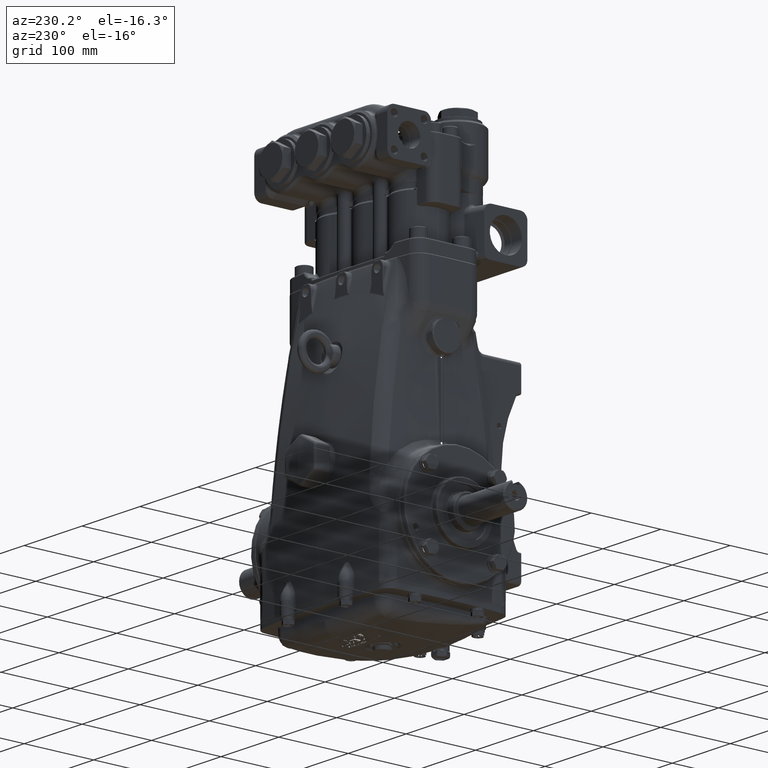
[diagram: clean part render]
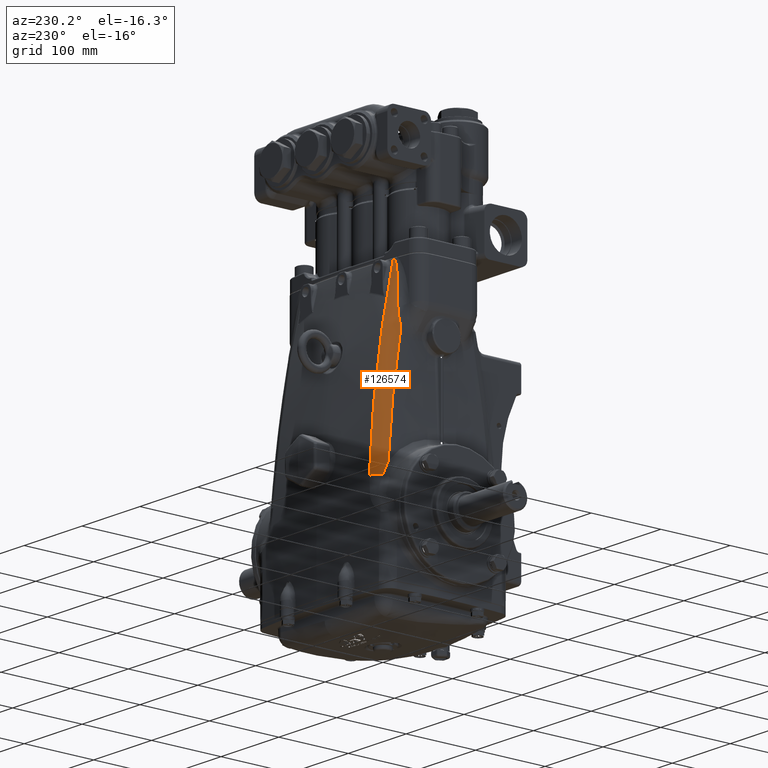
[diagram: same view with one face highlighted and labeled with its STEP entity id]
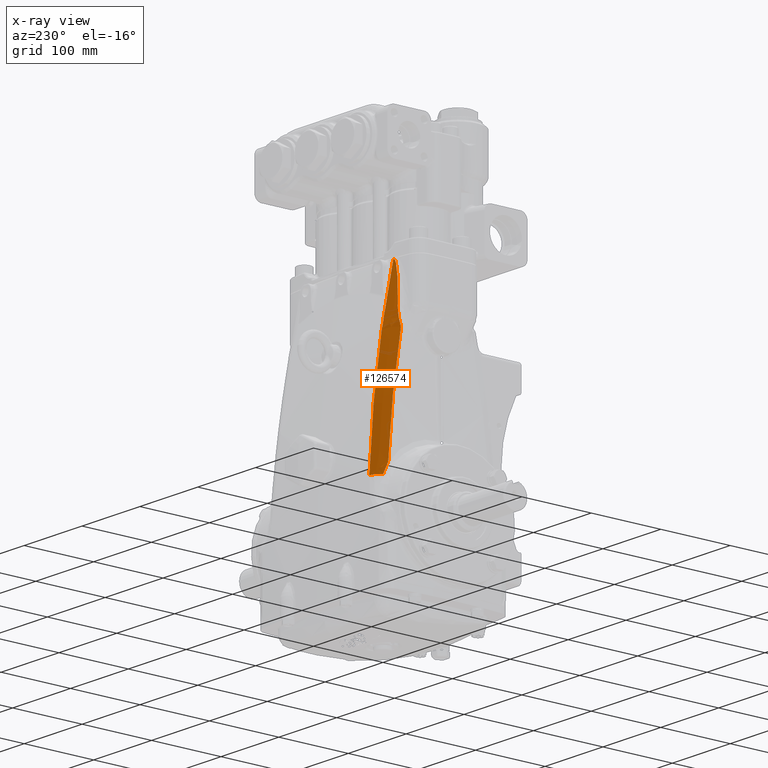
[diagram: x-ray of the same camera — body ghosted, the highlighted face saturated]
A machine part, auxiliary view. The second image highlights one B-rep face of the part: STEP entity #126574.
The next image is the same camera in x-ray: the body ghosted, the highlighted face saturated — about 0% of this face is hidden behind the body in this view.
In plain terms, the highlighted face is a freeform B-spline surface patch.
Its self-contained STEP definition (entity closure, byte-faithful):
#319 = CARTESIAN_POINT ( 'NONE',  ( -3.187411999549493391, 3.180972947435750431, 4.960797234820099710 ) ) ;
#737 = CARTESIAN_POINT ( 'NONE',  ( -3.269204732900450772, 3.494166244084205619, 1.549803905489431921 ) ) ;
#760 = B_SPLINE_CURVE_WITH_KNOTS ( 'NONE', 3,
 ( #83878, #124570, #33152, #73860, #114557, #23134, #63852, #104568, #13148, #53831, #94559, #3146, #43819, #84525, #125215, #33813, #74526, #115220, #23798, #64517, #105222, #13803, #54495, #95216, #3794, #44482, #85194, #125879 ),
 .UNSPECIFIED., .F., .F.,
 ( 4, 2, 2, 2, 2, 2, 2, 2, 2, 2, 2, 2, 2, 4 ),
 ( 0.0000000000000000000, 0.01272267982654318001, 0.01908401973981468241, 0.02544535965308618308, 0.03180669956635768375, 0.03816803947962919136, 0.04134870943626486189, 0.04452937939290053243, 0.04611971437121838158, 0.04771004934953623072, 0.04850521683869509632, 0.04930038432785396191, 0.05009555181701283444, 0.05089071930617170003 ),
 .UNSPECIFIED. ) ;
#1300 = CARTESIAN_POINT ( 'NONE',  ( -3.788773721439311348, 2.794649350203434857, 3.235045082078513712 ) ) ;
#2356 = VERTEX_POINT ( 'NONE', #131441 ) ;
#3146 = CARTESIAN_POINT ( 'NONE',  ( -3.288433655448591342, 1.974316455701513595, 11.32870975276895997 ) ) ;
#3399 = ORIENTED_EDGE ( 'NONE', *, *, #74645, .T. ) ;
#3794 = CARTESIAN_POINT ( 'NONE',  ( -3.089106361407772727, 1.953774575474547692, 11.68886016557627983 ) ) ;
#4855 = CARTESIAN_POINT ( 'NONE',  ( -3.589918111933611211, 1.889644707873581631, 11.75727767587871853 ) ) ;
#5504 = CARTESIAN_POINT ( 'NONE',  ( -3.658804494557767573, 1.837281659631256669, 9.549821321188925793 ) ) ;
#5692 = CARTESIAN_POINT ( 'NONE',  ( -3.588644919235312702, 2.147864103866095498, 9.327466105824086640 ) ) ;
#5983 = ORIENTED_EDGE ( 'NONE', *, *, #75370, .F. ) ;
#6149 = CARTESIAN_POINT ( 'NONE',  ( -3.186966253152299089, 3.178518602334162946, 4.981063251276674819 ) ) ;
#6373 = EDGE_CURVE ( 'NONE', #2356, #20007, #107342, .T. ) ;
#6801 = CARTESIAN_POINT ( 'NONE',  ( -3.781998062819874828, 3.439989269677553807, 1.559684158456561720 ) ) ;
#11282 = VERTEX_POINT ( 'NONE', #17379 ) ;
#11316 = CARTESIAN_POINT ( 'NONE',  ( -3.731566814817936173, 2.485603129191050975, 5.854716524150104462 ) ) ;
#11542 = AXIS2_PLACEMENT_3D ( 'NONE', #24558, #65271, #105976 ) ;
#12044 =( BOUNDED_SURFACE ( )  B_SPLINE_SURFACE ( 3, 2, ( 
 ( #96281, #4855, #45535 ),
 ( #86250, #126939, #35522 ),
 ( #76235, #116928, #25508 ),
 ( #66223, #106922, #15507 ),
 ( #56191, #96927, #5504 ),
 ( #46175, #86892, #127575 ),
 ( #36168, #76886, #117579 ),
 ( #26166, #66871, #107568 ),
 ( #16153, #56831, #97568 ),
 ( #6149, #46822, #87558 ),
 ( #128228, #36828, #77534 ),
 ( #118221, #26815, #67501 ),
 ( #108210, #16808, #57487 ),
 ( #98234, #6801, #47483 ) ),
 .UNSPECIFIED., .F., .F., .F. ) 
 B_SPLINE_SURFACE_WITH_KNOTS ( ( 4, 2, 2, 2, 2, 2, 4 ),
 ( 3, 3 ),
 ( 0.3419978113029756850, 0.3744830089578065069, 0.4069682066126373288, 0.4719386019222990281, 0.5044237995771299055, 0.5369089972319607273, 0.6018793925416223711 ),
 ( 0.0000000000000000000, 1.000000000000000000 ),
 .UNSPECIFIED. ) 
 GEOMETRIC_REPRESENTATION_ITEM ( )  RATIONAL_B_SPLINE_SURFACE ( (
 ( 1.000000000000000000, 0.7560130559632651792, 1.000000000000000000),
 ( 1.000000000000000000, 0.7571492924045932771, 1.000000000000000000),
 ( 1.000000000000000000, 0.7582354962214225003, 1.000000000000000000),
 ( 1.000000000000000000, 0.7603087553690203171, 1.000000000000000000),
 ( 1.000000000000000000, 0.7612961270030141891, 1.000000000000000000),
 ( 1.000000000000000000, 0.7641083035491569309, 1.000000000000000000),
 ( 1.000000000000000000, 0.7657817902121620834, 1.000000000000000000),
 ( 1.000000000000000000, 0.7679959464944710046, 1.000000000000000000),
 ( 1.000000000000000000, 0.7686845463808132939, 1.000000000000000000),
 ( 1.000000000000000000, 0.7699625865603482167, 1.000000000000000000),
 ( 1.000000000000000000, 0.7705521760810135623, 1.000000000000000000),
 ( 1.000000000000000000, 0.7721734963203804591, 1.000000000000000000),
 ( 1.000000000000000000, 0.7730579457102991769, 1.000000000000000000),
 ( 1.000000000000000000, 0.7737454532319997247, 1.000000000000000000) ) ) 
 REPRESENTATION_ITEM ( '' )  SURFACE ( )  );
#13148 = CARTESIAN_POINT ( 'NONE',  ( -3.379483495355244838, 2.004827407082619306, 10.96636951802282844 ) ) ;
#13730 = CARTESIAN_POINT ( 'NONE',  ( -3.807797924443275583, 2.977543044408082817, 1.978319764446337281 ) ) ;
#13803 = CARTESIAN_POINT ( 'NONE',  ( -3.123111626546794195, 1.953234862241755687, 11.66408944877293941 ) ) ;
#14855 = FACE_OUTER_BOUND ( 'NONE', #92848, .T. ) ;
#15507 = CARTESIAN_POINT ( 'NONE',  ( -3.650641123888094697, 1.748344757290344109, 9.967172917615114258 ) ) ;
#15704 = CARTESIAN_POINT ( 'NONE',  ( -3.615903419059625534, 2.148282731123987155, 9.087771712523789347 ) ) ;
#16153 = CARTESIAN_POINT ( 'NONE',  ( -3.168538870737483748, 3.067713329856495807, 5.835469309587299591 ) ) ;
#16808 = CARTESIAN_POINT ( 'NONE',  ( -3.760632177187649638, 3.386144853829423873, 2.418613819507564155 ) ) ;
#17379 = CARTESIAN_POINT ( 'NONE',  ( -3.542766596368535748, 2.108245540889408076, 9.814064409686812596 ) ) ;
#20007 = VERTEX_POINT ( 'NONE', #66700 ) ;
#20982 = CARTESIAN_POINT ( 'NONE',  ( -3.066112386415988933, 2.153713693125371531, 10.86498774305070469 ) ) ;
#21048 = B_SPLINE_CURVE_WITH_KNOTS ( 'NONE', 3,
 ( #44684, #85394, #126079, #34674 ),
 .UNSPECIFIED., .F., .F.,
 ( 4, 4 ),
 ( 0.0000000000000000000, 0.001285064076274404152 ),
 .UNSPECIFIED. ) ;
#21303 = CARTESIAN_POINT ( 'NONE',  ( -3.690115058314008323, 2.151184730222527097, 7.938748593144839383 ) ) ;
#23134 = CARTESIAN_POINT ( 'NONE',  ( -3.438590167990759561, 2.033891319479999460, 10.63902130253099010 ) ) ;
#23798 = CARTESIAN_POINT ( 'NONE',  ( -3.163954216183591406, 1.954624748665030332, 11.61605272439057046 ) ) ;
#24026 = CARTESIAN_POINT ( 'NONE',  ( -3.554708010239509886, 2.118902273423434401, 9.695388305858859468 ) ) ;
#24558 = CARTESIAN_POINT ( 'NONE',  ( -3.203942594157655588, 2.868976490605358531, 1.508823190593775010 ) ) ;
#25508 = CARTESIAN_POINT ( 'NONE',  ( -3.634034561642262684, 1.561231582636855686, 10.79967266109354540 ) ) ;
#25708 = CARTESIAN_POINT ( 'NONE',  ( -3.644514689806643393, 2.131245168979943649, 8.848770191558882559 ) ) ;
#26166 = CARTESIAN_POINT ( 'NONE',  ( -3.159573981068620085, 3.007584296943471625, 6.262205731746902870 ) ) ;
#26815 = CARTESIAN_POINT ( 'NONE',  ( -3.741269416928316716, 3.313199642596796668, 3.276727043862713185 ) ) ;
#29492 = VERTEX_POINT ( 'NONE', #70384 ) ;
#31003 = CARTESIAN_POINT ( 'NONE',  ( -3.117120338754920006, 2.672174463103909048, 8.348257340075480926 ) ) ;
#31155 = EDGE_CURVE ( 'NONE', #36488, #11282, #87288, .T. ) ;
#32527 = ORIENTED_EDGE ( 'NONE', *, *, #31155, .T. ) ;
#33152 = CARTESIAN_POINT ( 'NONE',  ( -3.507493284119140409, 2.078444153699458674, 10.14487202249964604 ) ) ;
#33739 = CARTESIAN_POINT ( 'NONE',  ( -3.770580920303959083, 3.142302170779629922, 1.540680269885116749 ) ) ;
#33813 = CARTESIAN_POINT ( 'NONE',  ( -3.205752225059763649, 1.958674480447312849, 11.54314204520085418 ) ) ;
#34674 = CARTESIAN_POINT ( 'NONE',  ( -3.576149117424309853, 2.139323488232271586, 9.457729532381188520 ) ) ;
#35522 = CARTESIAN_POINT ( 'NONE',  ( -3.625590179549488479, 1.463042293424011708, 11.21488468228997881 ) ) ;
#35711 = CARTESIAN_POINT ( 'NONE',  ( -3.676183625752012851, 2.074507989343169712, 8.534897784484202887 ) ) ;
#36168 = CARTESIAN_POINT ( 'NONE',  ( -3.133196056143836117, 2.813169425873078389, 7.540067853943227760 ) ) ;
#36488 = VERTEX_POINT ( 'NONE', #130347 ) ;
#36828 = CARTESIAN_POINT ( 'NONE',  ( -3.714694376460200065, 3.175668598951369326, 4.558885180942064075 ) ) ;
#41010 = CARTESIAN_POINT ( 'NONE',  ( -3.169077725909747123, 3.071167649471457040, 5.810104169129147955 ) ) ;
#41436 = CARTESIAN_POINT ( 'NONE',  ( -3.257994996955968503, 3.467318692098095845, 1.977233875776326810 ) ) ;
#41987 = CARTESIAN_POINT ( 'NONE',  ( -3.801213099687899444, 2.841866375676329604, 2.709332421064478247 ) ) ;
#43819 = CARTESIAN_POINT ( 'NONE',  ( -3.275843467519635066, 1.971181975992472468, 11.36837621607076798 ) ) ;
#44482 = CARTESIAN_POINT ( 'NONE',  ( -3.069401841915799789, 1.954845582119939751, 11.69643858961700467 ) ) ;
#44684 = CARTESIAN_POINT ( 'NONE',  ( -3.580799902365598086, 2.142989470956519593, 9.407484235152326235 ) ) ;
#45535 = CARTESIAN_POINT ( 'NONE',  ( -3.616874770236321979, 1.360230636718298802, 11.62905843821257434 ) ) ;
#46175 = CARTESIAN_POINT ( 'NONE',  ( -3.116313128745268557, 2.664885723971083920, 8.388751505512237472 ) ) ;
#46370 = CARTESIAN_POINT ( 'NONE',  ( -3.580799902365598086, 2.142989470956519593, 9.407484235152326235 ) ) ;
#46822 = CARTESIAN_POINT ( 'NONE',  ( -3.706231425358892384, 3.125056899071798178, 4.986101976194560415 ) ) ;
#47483 = CARTESIAN_POINT ( 'NONE',  ( -3.830823294112212896, 2.927496912473777968, 1.528741570307350139 ) ) ;
#51012 = CARTESIAN_POINT ( 'NONE',  ( -3.216296056407198733, 3.322383220422969519, 3.684119343499719257 ) ) ;
#51994 = CARTESIAN_POINT ( 'NONE',  ( -3.753557971363301160, 2.623800068678024289, 4.808583868586544519 ) ) ;
#52695 = B_SPLINE_CURVE_WITH_KNOTS ( 'NONE', 3,
 ( #737, #41436, #82150, #122825, #51012, #91745, #319, #41010, #81720, #122406, #31003, #71706, #112384, #20982, #61686, #102414 ),
 .UNSPECIFIED., .F., .F.,
 ( 4, 2, 2, 2, 2, 2, 2, 4 ),
 ( 0.0000000000000000000, 0.03264243258107458329, 0.06528486516214915270, 0.09792729774322372904, 0.1305697303242982776, 0.1958545954864474858, 0.2284970280675220899, 0.2611394606485967218 ),
 .UNSPECIFIED. ) ;
#53831 = CARTESIAN_POINT ( 'NONE',  ( -3.343438491307865412, 1.990833437488416013, 11.12847261618670913 ) ) ;
#54425 = CARTESIAN_POINT ( 'NONE',  ( -3.812953688536298458, 2.930920300305807746, 2.082303641742098588 ) ) ;
#54495 = CARTESIAN_POINT ( 'NONE',  ( -3.115317381886177905, 1.953208774553335747, 11.67110744268336653 ) ) ;
#54926 = EDGE_CURVE ( 'NONE', #102174, #20007, #79653, .T. ) ;
#55919 = EDGE_CURVE ( 'NONE', #102174, #29492, #69028, .T. ) ;
#56191 = CARTESIAN_POINT ( 'NONE',  ( -3.090823749522751296, 2.414561174761125972, 9.656936045481318232 ) ) ;
#56386 = CARTESIAN_POINT ( 'NONE',  ( -3.611175073036743566, 2.149335404892715129, 9.127704501144831895 ) ) ;
#56831 = CARTESIAN_POINT ( 'NONE',  ( -3.689971348518871874, 3.014427983727832050, 5.839391051182142967 ) ) ;
#57487 = CARTESIAN_POINT ( 'NONE',  ( -3.808892059467134050, 2.872960910714121407, 2.379199177741197602 ) ) ;
#61366 = EDGE_CURVE ( 'NONE', #2356, #122968, #65542, .T. ) ;
#61686 = CARTESIAN_POINT ( 'NONE',  ( -3.057369498427757737, 2.057451332273736444, 11.28228488240600136 ) ) ;
#62017 = CARTESIAN_POINT ( 'NONE',  ( -3.700236916683070199, 2.241993115511200063, 7.419026472001160499 ) ) ;
#63852 = CARTESIAN_POINT ( 'NONE',  ( -3.425113512321849463, 2.026531792189807835, 10.72117684414497951 ) ) ;
#64446 = CARTESIAN_POINT ( 'NONE',  ( -3.782174297275330499, 3.105067683978651960, 1.653932639205494493 ) ) ;
#64517 = CARTESIAN_POINT ( 'NONE',  ( -3.144611588856315532, 1.953722050217710615, 11.64100215362413770 ) ) ;
#64748 = CARTESIAN_POINT ( 'NONE',  ( -3.542766596368535748, 2.108245540889408076, 9.814064409686812596 ) ) ;
#65271 = DIRECTION ( 'NONE',  ( -0.02584747050126739651, 0.06270016655278089213, -0.9976976482797480505 ) ) ;
#65542 = B_SPLINE_CURVE_WITH_KNOTS ( 'NONE', 3,
 ( #127121, #35711, #76430, #117123, #25708, #66417, #107116, #15704, #56386, #97123, #5692, #46370 ),
 .UNSPECIFIED., .F., .F.,
 ( 4, 2, 2, 2, 2, 4 ),
 ( 0.0000000000000000000, 0.006105293281051692687, 0.01221058656210338537, 0.01526323320262923389, 0.01831587984315508413, 0.02442117312420670483 ),
 .UNSPECIFIED. ) ;
#66223 = CARTESIAN_POINT ( 'NONE',  ( -3.082298445646426188, 2.326484231684772919, 10.07876845336315874 ) ) ;
#66417 = CARTESIAN_POINT ( 'NONE',  ( -3.630274747985410499, 2.141864256455619397, 8.967991098027294328 ) ) ;
#66700 = CARTESIAN_POINT ( 'NONE',  ( -3.814269082362508279, 2.881727563546267135, 2.183157301090169256 ) ) ;
#66871 = CARTESIAN_POINT ( 'NONE',  ( -3.682171762108213287, 2.954367736563306313, 6.265654440970484629 ) ) ;
#67501 = CARTESIAN_POINT ( 'NONE',  ( -3.788649543497682348, 2.799174602996818084, 3.229106078057604634 ) ) ;
#69028 = CIRCLE ( 'NONE', #11542, 0.6299212598425197873 ) ;
#70384 = CARTESIAN_POINT ( 'NONE',  ( -3.269204732900450772, 3.494166244084205619, 1.549803905489431921 ) ) ;
#71706 = CARTESIAN_POINT ( 'NONE',  ( -3.091790677973859314, 2.424351262851354605, 9.608981028187290718 ) ) ;
#72211 = VERTEX_POINT ( 'NONE', #97735 ) ;
#72353 = ORIENTED_EDGE ( 'NONE', *, *, #61366, .T. ) ;
#72893 = EDGE_CURVE ( 'NONE', #11282, #72211, #760, .T. ) ;
#73860 = CARTESIAN_POINT ( 'NONE',  ( -3.475132884461885396, 2.056109810165644980, 10.39221283459855982 ) ) ;
#74526 = CARTESIAN_POINT ( 'NONE',  ( -3.196248785558719607, 1.957521553395846103, 11.56183124994849187 ) ) ;
#74645 = EDGE_CURVE ( 'NONE', #122968, #36488, #21048, .T. ) ;
#74752 = CARTESIAN_POINT ( 'NONE',  ( -3.576149117424309853, 2.139323488232271586, 9.457729532381188520 ) ) ;
#75370 = EDGE_CURVE ( 'NONE', #29492, #72211, #52695, .T. ) ;
#76235 = CARTESIAN_POINT ( 'NONE',  ( -3.064961872081308325, 2.141177123060190812, 10.92020775159233459 ) ) ;
#76430 = CARTESIAN_POINT ( 'NONE',  ( -3.669592097120425223, 2.092360205566928588, 8.612894015470624609 ) ) ;
#76886 = CARTESIAN_POINT ( 'NONE',  ( -3.659516729909861432, 2.760006172627041288, 7.543276944098860959 ) ) ;
#77534 = CARTESIAN_POINT ( 'NONE',  ( -3.760269245680015526, 2.659905205168439757, 4.500378107675504502 ) ) ;
#79653 = B_SPLINE_CURVE_WITH_KNOTS ( 'NONE', 3,
 ( #33739, #64446, #105153, #13730, #54425, #95147 ),
 .UNSPECIFIED., .F., .F.,
 ( 4, 2, 4 ),
 ( 0.0000000000000000000, 0.5000000000000000000, 1.000000000000000000 ),
 .UNSPECIFIED. ) ;
#81720 = CARTESIAN_POINT ( 'NONE',  ( -3.160157785945038711, 3.011595640940678997, 6.234294448528373778 ) ) ;
#82150 = CARTESIAN_POINT ( 'NONE',  ( -3.247199614774384013, 3.435775041202732805, 2.404314508298649233 ) ) ;
#82700 = CARTESIAN_POINT ( 'NONE',  ( -3.814269082362508279, 2.881727563546267135, 2.183157301090169256 ) ) ;
#83878 = CARTESIAN_POINT ( 'NONE',  ( -3.542766596368535748, 2.108245540889408076, 9.814064409686812596 ) ) ;
#84525 = CARTESIAN_POINT ( 'NONE',  ( -3.247854053815111719, 1.965231277512681229, 11.44703742217719267 ) ) ;
#85194 = CARTESIAN_POINT ( 'NONE',  ( -3.058952848731955498, 1.955623167342799062, 11.69858645062688396 ) ) ;
#85394 = CARTESIAN_POINT ( 'NONE',  ( -3.579157275893888990, 2.141968797427053151, 9.424238806829373871 ) ) ;
#86196 = CARTESIAN_POINT ( 'NONE',  ( -3.770580920303959083, 3.142302170779629922, 1.540680269885116749 ) ) ;
#86250 = CARTESIAN_POINT ( 'NONE',  ( -3.056149333729739404, 2.043934400726509448, 11.33987919838269320 ) ) ;
#86892 = CARTESIAN_POINT ( 'NONE',  ( -3.645454460734158353, 2.611704385282820340, 8.391559864438930205 ) ) ;
#87288 = B_SPLINE_CURVE_WITH_KNOTS ( 'NONE', 3,
 ( #74752, #115450, #24026, #64748 ),
 .UNSPECIFIED., .F., .F.,
 ( 4, 4 ),
 ( 0.0000000000000000000, 0.009124745447547868635 ),
 .UNSPECIFIED. ) ;
#87558 = CARTESIAN_POINT ( 'NONE',  ( -3.751134849788913872, 2.608716639390830760, 4.923591589836673776 ) ) ;
#91745 = CARTESIAN_POINT ( 'NONE',  ( -3.196827980763150112, 3.231218854497723392, 4.535599982320241530 ) ) ;
#92714 = CARTESIAN_POINT ( 'NONE',  ( -3.764946817707797155, 2.685616327955809624, 4.284649282652233104 ) ) ;
#92848 = EDGE_LOOP ( 'NONE', ( #93384, #5983, #108828, #125330, #129473, #72353, #3399, #32527 ) ) ;
#93384 = ORIENTED_EDGE ( 'NONE', *, *, #72893, .T. ) ;
#94559 = CARTESIAN_POINT ( 'NONE',  ( -3.323539555675848245, 1.984003420254963013, 11.20907162170097493 ) ) ;
#95147 = CARTESIAN_POINT ( 'NONE',  ( -3.814269082362508279, 2.881727563546267135, 2.183157301090169256 ) ) ;
#95216 = CARTESIAN_POINT ( 'NONE',  ( -3.098228102935195682, 1.953479448419660036, 11.68356088856602248 ) ) ;
#96281 = CARTESIAN_POINT ( 'NONE',  ( -3.047062988844523534, 1.942112879583546281, 11.75850216152274363 ) ) ;
#96927 = CARTESIAN_POINT ( 'NONE',  ( -3.624739795667941245, 2.361846785260556025, 9.657226260257358419 ) ) ;
#97123 = CARTESIAN_POINT ( 'NONE',  ( -3.597355062208697163, 2.150247036588929905, 9.247534800881268779 ) ) ;
#97568 = CARTESIAN_POINT ( 'NONE',  ( -3.733375874080055556, 2.496822600370382617, 5.768929328260283818 ) ) ;
#97735 = CARTESIAN_POINT ( 'NONE',  ( -3.048361850561355890, 1.956657500317994680, 11.69856850100573276 ) ) ;
#98234 = CARTESIAN_POINT ( 'NONE',  ( -3.269204732900452104, 3.494166244084205619, 1.549803905489430367 ) ) ;
#102174 = VERTEX_POINT ( 'NONE', #86196 ) ;
#102414 = CARTESIAN_POINT ( 'NONE',  ( -3.048361850561355890, 1.956657500317994680, 11.69856850100573276 ) ) ;
#102734 = CARTESIAN_POINT ( 'NONE',  ( -3.720962081858113724, 2.409200364965605079, 6.377039946395764325 ) ) ;
#102875 = CARTESIAN_POINT ( 'NONE',  ( -3.580799902365598086, 2.142989470956519593, 9.407484235152326235 ) ) ;
#104568 = CARTESIAN_POINT ( 'NONE',  ( -3.395550305680833159, 2.012001240785475709, 10.88484654828793197 ) ) ;
#105153 = CARTESIAN_POINT ( 'NONE',  ( -3.792405264419058231, 3.064612692970520857, 1.764133578097811794 ) ) ;
#105222 = CARTESIAN_POINT ( 'NONE',  ( -3.137753295990111990, 1.953489988434659708, 11.64905505856251899 ) ) ;
#105976 = DIRECTION ( 'NONE',  ( 0.0000000000000000000, 0.9980310921419518477, 0.06272112178479140321 ) ) ;
#106922 = CARTESIAN_POINT ( 'NONE',  ( -3.617881291539023714, 2.273791004135345517, 10.07883757417355319 ) ) ;
#107116 = CARTESIAN_POINT ( 'NONE',  ( -3.625453803538600805, 2.144548388560649776, 9.007910192479023692 ) ) ;
#107342 = B_SPLINE_CURVE_WITH_KNOTS ( 'NONE', 3,
 ( #112717, #21303, #62017, #102734, #11316, #51994, #92714, #1300, #41987, #82700 ),
 .UNSPECIFIED., .F., .F.,
 ( 4, 2, 2, 2, 4 ),
 ( 0.08476750981346586888, 0.1249840975113978014, 0.1652006852093297340, 0.2054172729072616943, 0.2456338606051936269 ),
 .UNSPECIFIED. ) ;
#107568 = CARTESIAN_POINT ( 'NONE',  ( -3.724749659922824474, 2.436103823054936335, 6.191136171432662039 ) ) ;
#108210 = CARTESIAN_POINT ( 'NONE',  ( -3.246661546152605826, 3.440174841299046271, 2.409381110722794705 ) ) ;
#108828 = ORIENTED_EDGE ( 'NONE', *, *, #55919, .F. ) ;
#112384 = CARTESIAN_POINT ( 'NONE',  ( -3.083322352733954830, 2.337157510713007369, 10.02836769579707266 ) ) ;
#112717 = CARTESIAN_POINT ( 'NONE',  ( -3.680044730410442888, 2.053194663346450621, 8.457199941519622399 ) ) ;
#114557 = CARTESIAN_POINT ( 'NONE',  ( -3.463598773325417657, 2.048677792663028630, 10.47456393592918467 ) ) ;
#115220 = CARTESIAN_POINT ( 'NONE',  ( -3.175331520119956785, 1.955497972035435073, 11.59829125815896766 ) ) ;
#115450 = CARTESIAN_POINT ( 'NONE',  ( -3.565811391544677633, 2.129228831142555123, 9.576604896241546427 ) ) ;
#116928 = CARTESIAN_POINT ( 'NONE',  ( -3.604048377092111455, 2.088550987447082452, 10.91983584963829834 ) ) ;
#117123 = CARTESIAN_POINT ( 'NONE',  ( -3.653754965434140356, 2.120718746964249224, 8.769831607828354691 ) ) ;
#117579 = CARTESIAN_POINT ( 'NONE',  ( -3.699400011502169239, 2.239784669858119859, 7.455433125177638232 ) ) ;
#118221 = CARTESIAN_POINT ( 'NONE',  ( -3.225786521989106870, 3.367115606732822730, 3.268402680746357980 ) ) ;
#122406 = CARTESIAN_POINT ( 'NONE',  ( -3.133913998702548387, 2.819013614672498669, 7.504584520848139206 ) ) ;
#122825 = CARTESIAN_POINT ( 'NONE',  ( -3.226349643378954912, 3.363306529552681390, 3.257775733343591718 ) ) ;
#122968 = VERTEX_POINT ( 'NONE', #102875 ) ;
#124570 = CARTESIAN_POINT ( 'NONE',  ( -3.526110223087382423, 2.093381093767648693, 9.979598701209544842 ) ) ;
#125215 = CARTESIAN_POINT ( 'NONE',  ( -3.232443174415203124, 1.962397510778285614, 11.48619949557371456 ) ) ;
#125330 = ORIENTED_EDGE ( 'NONE', *, *, #54926, .T. ) ;
#125879 = CARTESIAN_POINT ( 'NONE',  ( -3.048361850561355890, 1.956657500317994680, 11.69856850100573276 ) ) ;
#126079 = CARTESIAN_POINT ( 'NONE',  ( -3.577605098274455830, 2.140745234908720818, 9.440986947469372836 ) ) ;
#126574 = ADVANCED_FACE ( 'NONE', ( #14855 ), #12044, .T. ) ;
#126939 = CARTESIAN_POINT ( 'NONE',  ( -3.597071034874167683, 1.991304745253442698, 11.33939218619141975 ) ) ;
#127121 = CARTESIAN_POINT ( 'NONE',  ( -3.680044730410442888, 2.053194663346450621, 8.457199941519622399 ) ) ;
#127575 = CARTESIAN_POINT ( 'NONE',  ( -3.683218887657213170, 2.090051777215203632, 8.295105779658376477 ) ) ;
#128228 = CARTESIAN_POINT ( 'NONE',  ( -3.196430448770180011, 3.229208018188942653, 4.553310141910483999 ) ) ;
#129473 = ORIENTED_EDGE ( 'NONE', *, *, #6373, .F. ) ;
#130347 = CARTESIAN_POINT ( 'NONE',  ( -3.576149117424309853, 2.139323488232271586, 9.457729532381188520 ) ) ;
#131441 = CARTESIAN_POINT ( 'NONE',  ( -3.680044730410442888, 2.053194663346450621, 8.457199941519622399 ) ) ;